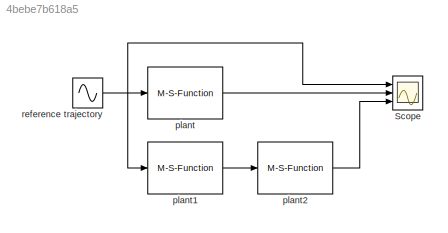
MODEL slx_4bebe7b618a5
KIND model
CONFIG AbsTol = auto
CONFIG EnableMultiTasking = off
CONFIG FixedStep = 0.01
CONFIG MaxStep = auto
CONFIG MinStep = auto
CONFIG RelTol = 1e-3
CONFIG SampleTimeConstraint = Unconstrained
CONFIG SolverName = FixedStepAuto
CONFIG StartTime = 0.0
CONFIG StopTime = 10
BLOCK [Scope] Scope
  Floating = off
  NumInputPorts = 3
  Ports = [3]
  ScopeSpecificationString = Simulink.scopes.TimeScopeBlockCfg('CurrentConfiguration', extmgr.ConfigurationSet(extmgr.Configuration('Core','General UI',true),extmgr.Configuration('Core','Source UI',true),extmgr.Configuration('Sources','WiredSimulink',true),extmgr.Configuration('Visuals','Time Domain',true,'SerializedDisplays',{struct('MinYLimReal','-7.56848','MaxYLimReal','7.56848','YLabelReal','','MinYLimMag','0.00000','MaxY...<+2057ch>
BLOCK [M-S-Function] plant
  FunctionName = panModelPredictiveControl2012_plant
  Parameters = [1,0,0],[0, 0]
  Ports = [1, 1]
BLOCK [M-S-Function] plant1
  FunctionName = panModelPredictiveControl2012_plant
  Parameters = [1,0,0],[0, 0]
  Ports = [1, 1]
BLOCK [M-S-Function] plant2
  FunctionName = panModelPredictiveControl2012_plant
  Parameters = [1,0,0],[0, 0]
  Ports = [1, 1]
BLOCK [Sin] reference trajectory
  Ports = [0, 1]
  SampleTime = 0
LINE plant1:1 -> plant2:1
LINE plant2:1 -> Scope:3
LINE plant:1 -> Scope:2
NET reference trajectory:1 -> Scope:1, plant1:1, plant:1
note: NET lines group one-source signal fan-out (src -> all destinations, sorted); 1:1 wires keep LINE
